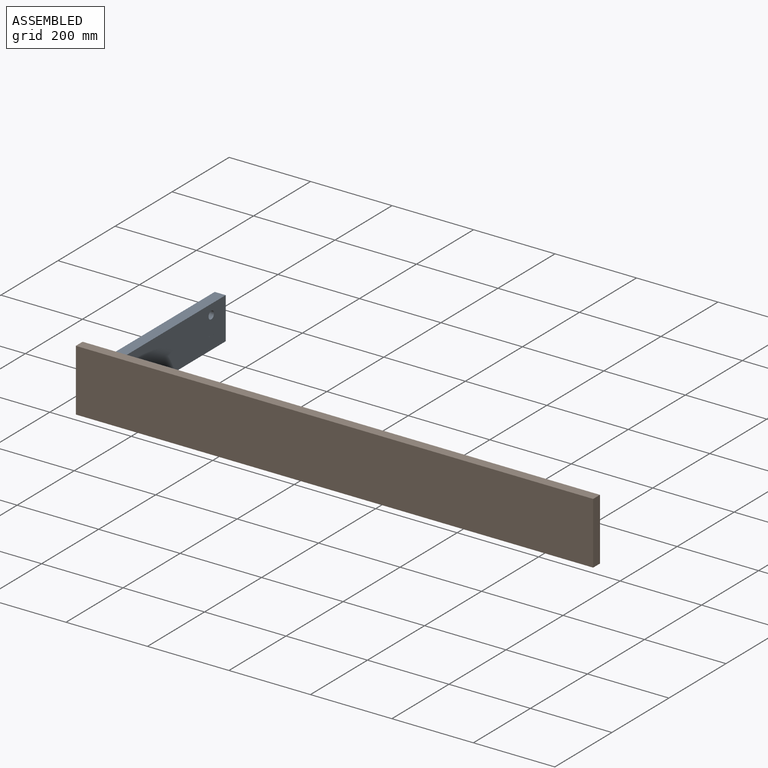
[diagram: assembled view]
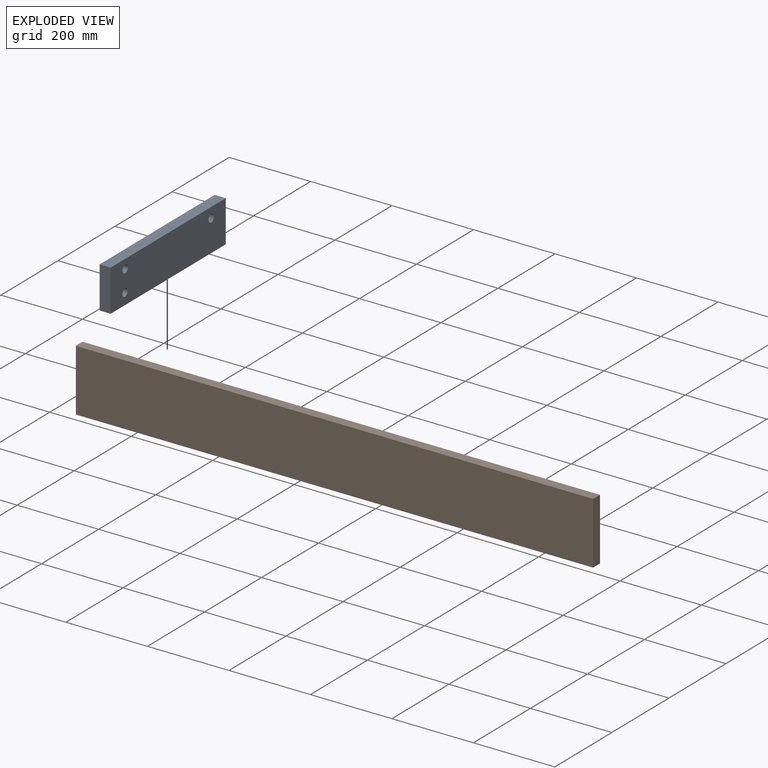
[diagram: exploded view]
GUIDED TOUR — MATED ASSEMBLY WITH SUBASSEMBLIES (Onshape document 4dad89749d95eceadba13d9a, AutoMate assembly 4dad89749d95eceadba13d9a_2f0892831f95bbd6a811efa2_f44882a6ea3945714f20935d_default)

This assembly has 4 component occurrences arranged in 2 top-level units: 1 individual components plus 1 subassembly (S0). The tour has two levels: first the top level, where each subassembly is treated as one rigid unit; then each subassembly is toured internally in its own section (nesting deeper than one subassembly level is flattened into its subassembly's section).

Components are labeled P0..P3 across the whole record; subassembly units are labeled S0..S0. A mate is a constraint between two units; its type names the relative motion it leaves free:
  CYLINDRICAL — leaves both rotation about and translation along the listed axis free,
  FASTENED — locks the two components together rigidly (no relative motion),
  PLANAR — leaves sliding in the plane through the listed point (normal = the listed direction) and rotation about that normal free.
Axis/direction vectors are unit vectors and 'through' points are millimeter coordinates, both in the assembly's world frame.

TOP-LEVEL MATES (between units; each subassembly's internal mates are listed in its own section)
  1. PLANAR "Planar 1": S0 <-> P2, direction (0.000, -1.000, 0.000) through (-868.23, -403.51, 72.04) mm
  2. PLANAR "Planar 2": S0 <-> P2, direction (-1.000, 0.000, 0.000) through (-874.97, -201.90, 72.00) mm

TOP-LEVEL ASSEMBLY ORDER
  1. P2 — the base component [order verified]
  2. S0 [order verified]
Order-tag legend:
  [order verified] — this step's position reverses a verified removal order: the component was checked to insert without passing through the ones already placed.

Of the 4 component occurrences, 3 carry the full construction recipe — the FeatureScript program that regenerates the part's solid from scratch; the rest are supplied as boundary geometry only. Each toured unit is shown spotlighted twice — assembled, then exploded with a leader line back to its socket (green = recipe-attached component, orange = geometry-only, blue = subassembly unit; the rest desaturated gray).
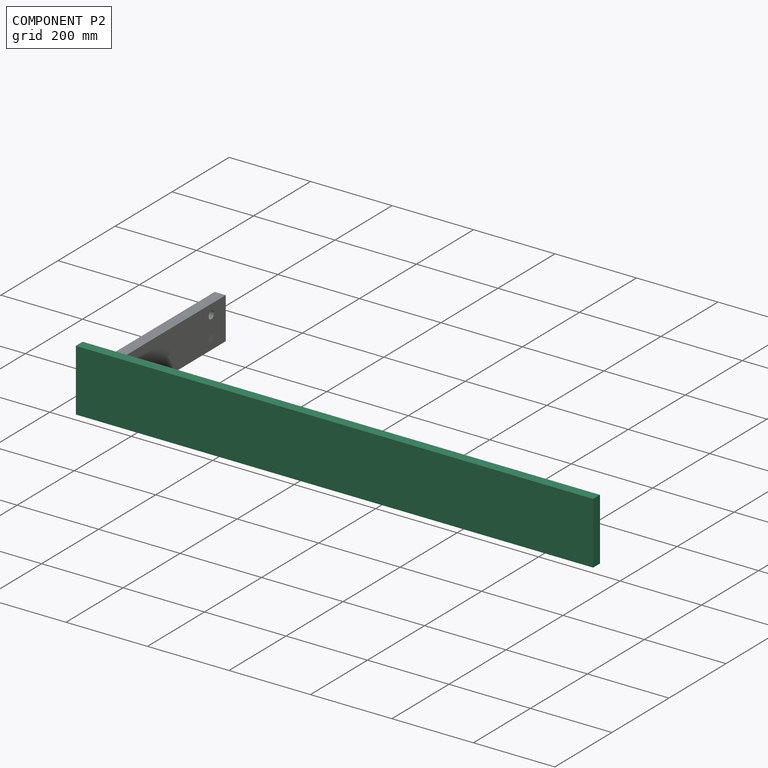
[diagram: component P2 — assembled]
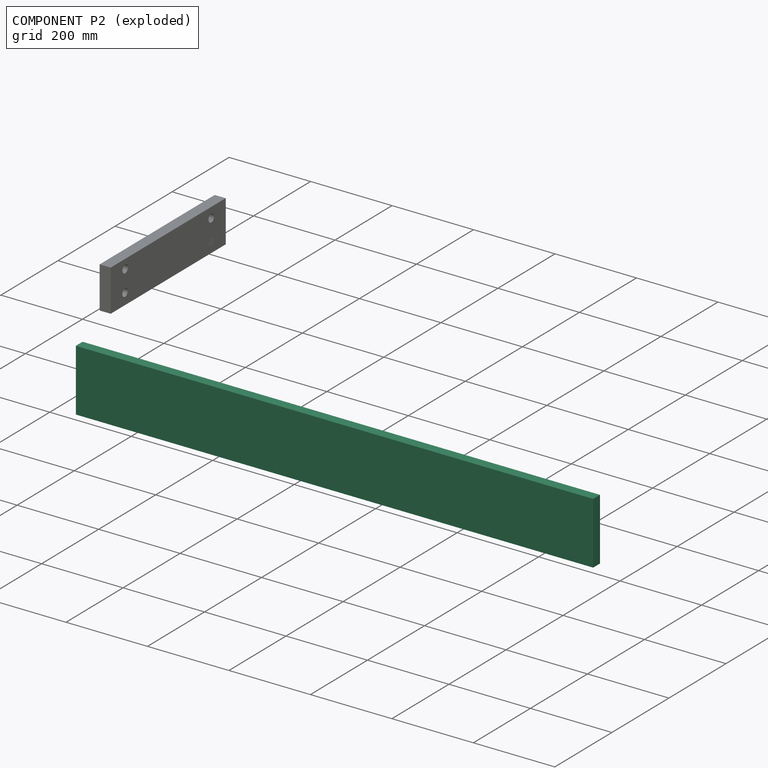
[diagram: component P2 — exploded]
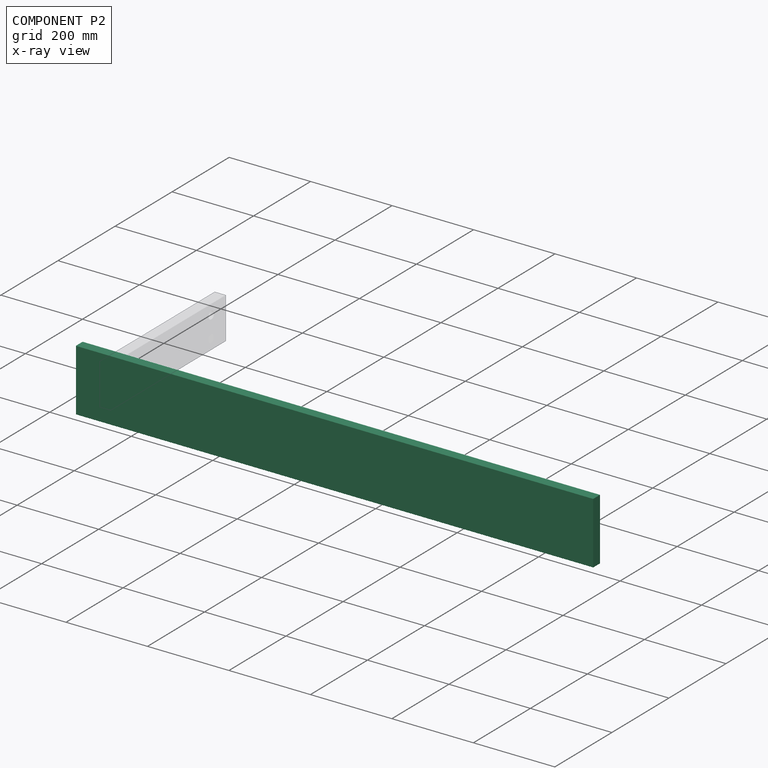
[diagram: component P2 — x-ray view]
COMPONENT P2 — recipe-attached (CADFS 00967313, mesh-verified: the recipe's output STEP matches this component's geometry to below the mesh-comparison resolution (tessellation chordal tolerance ~1.92 mm)).
Held by: PLANAR mate "Planar 1" to P0; PLANAR mate "Planar 2" to P0.
Construction recipe (FeatureScript — the CAD program that rebuilds this solid; sketch coordinates are in the units given by the * unit suffixes, e.g. mm):

FeatureScript 1511;
import(path : "onshape/std/geometry.fs", version : "1511.0");
import(path : "onshape/std/common.fs", version : "1511.0");
const mm = millimeter;
const VERTEX = EntityType.VERTEX;
const EDGE = EntityType.EDGE;
const FACE = EntityType.FACE;
const BODY = EntityType.BODY;
function v(x, y){return vector(x, y);}
function OD(order){return orderDisambiguation(order);}
function OSD(set){return originalSetDisambiguation(set);}
function TD(topology){return topologyDisambiguation(topology);}
function TDD(query){return trueDependencyDisambiguation(query);}
function sQuery(a, b, c) {return sketchEntityQuery(a, b, c);}

annotation { "Feature Type Name" : "Feature", "Feature Type Description" : "" }
export const myFeature = defineFeature(function(context is Context, id is Id, definition is map)
    precondition{}
    {
        {
            var Q0;
            Q0=qCreatedBy(makeId("Top.planeOp"),FACE);
            var sketch = newSketch(context, id + "F0", { "sketchPlane" : qUnion([Q0])});
            skLineSegment(sketch, "E0.bottom", {"start": v(-909.25, -64.28) * mm, "end": v(360.75, -64.28) * mm});
            skLineSegment(sketch, "E0.top", {"start": v(-909.25, -216.68) * mm, "end": v(360.75, -216.68) * mm});
            skLineSegment(sketch, "E0.left", {"start": v(-909.25, -64.28) * mm, "end": v(-909.25, -216.68) * mm});
            skLineSegment(sketch, "E0.right", {"start": v(360.75, -64.28) * mm, "end": v(360.75, -216.68) * mm});
            skSolve(sketch);
        }
        {
            var Q0;
            Q0=makeQuery(id+"F0.imprint","IMPRINT",FACE,{"disambiguationData":[TD([[makeQuery(id+"F0.imprint","IMPRINT",EDGE,{"derivedFrom":sQuery(id+"F0.wireOp",EDGE,"E0.bottom")}),-1.0]])]});
            extrude(context, id + "F1", {"entities" : qUnion([Q0]), "depth" : 23.8 * mm, "offsetDistance" : 25.4 * mm});
        }
        {
            var Q0;
            Q0=makeQuery(id+"F1.opExtrude","CAP_FACE",FACE,{"disambiguationData":[OSD([sQuery(id+"F0.wireOp",EDGE,"E0.bottom"),sQuery(id+"F0.wireOp",EDGE,"E0.top"),sQuery(id+"F0.wireOp",EDGE,"E0.left"),sQuery(id+"F0.wireOp",EDGE,"E0.right")])],"isStart":true});
            var sketch = newSketch(context, id + "F2", { "sketchPlane" : qUnion([Q0])});
            skLineSegment(sketch, "E1.bottom", {"start": v(-858.45, 191.68) * mm, "end": v(-831.46, 191.68) * mm});
            skLineSegment(sketch, "E1.top", {"start": v(-858.45, 89.28) * mm, "end": v(-831.46, 89.28) * mm});
            skLineSegment(sketch, "E1.left", {"start": v(-858.45, 191.68) * mm, "end": v(-858.45, 89.28) * mm});
            skLineSegment(sketch, "E1.right", {"start": v(-831.46, 191.68) * mm, "end": v(-831.46, 89.28) * mm});
            skPoint(sketch, "E2", {"position": v(-909.25, 140.48) * mm});
            skPoint(sketch, "E3", {"position": v(-858.45, 140.48) * mm});
            skLineSegment(sketch, "E4", {"start": v(-274.25, 64.28) * mm, "end": v(-274.25, 216.68) * mm, "construction": true});
            skLineSegment(sketch, "E5.MirrorCS", {"start": v(282.97, 191.68) * mm, "end": v(282.97, 89.28) * mm});
            skLineSegment(sketch, "E6.MirrorCS", {"start": v(309.95, 89.28) * mm, "end": v(282.97, 89.28) * mm});
            skLineSegment(sketch, "E7.MirrorCS", {"start": v(309.95, 191.68) * mm, "end": v(309.95, 89.28) * mm});
            skLineSegment(sketch, "E8.MirrorCS", {"start": v(309.95, 191.68) * mm, "end": v(282.97, 191.68) * mm});
            skSolve(sketch);
        }
        {
            var Q0;
            Q0 = qSketchRegion(id + "F2", true);
            extrude(context, id + "F3", {"entities" : qUnion([Q0]), "operationType" : NewBodyOperationType.REMOVE, "oppositeDirection" : true, "depth" : 12.7 * mm, "offsetDistance" : 25.4 * mm});
        }
    });
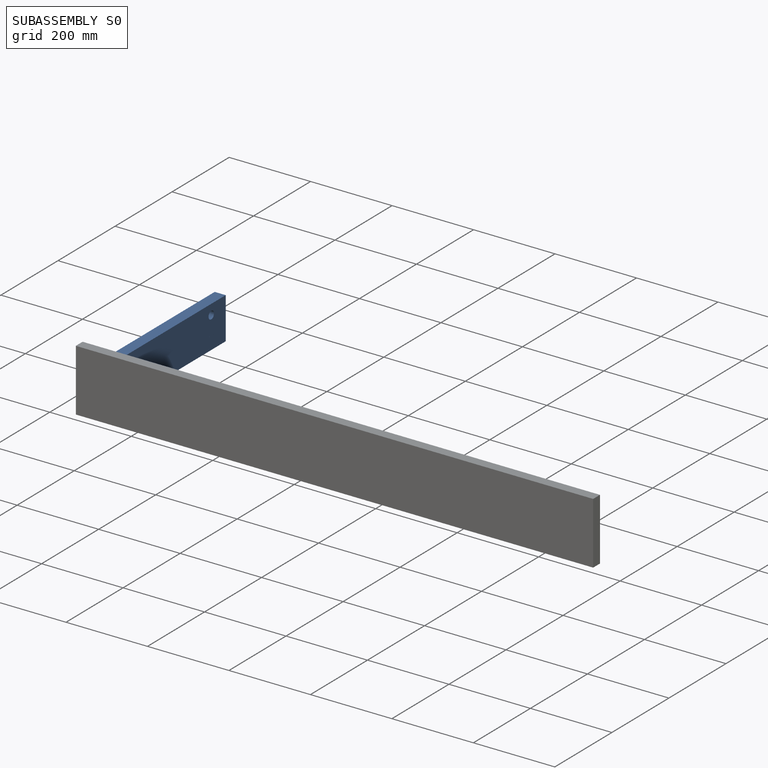
[diagram: subassembly S0 — assembled]
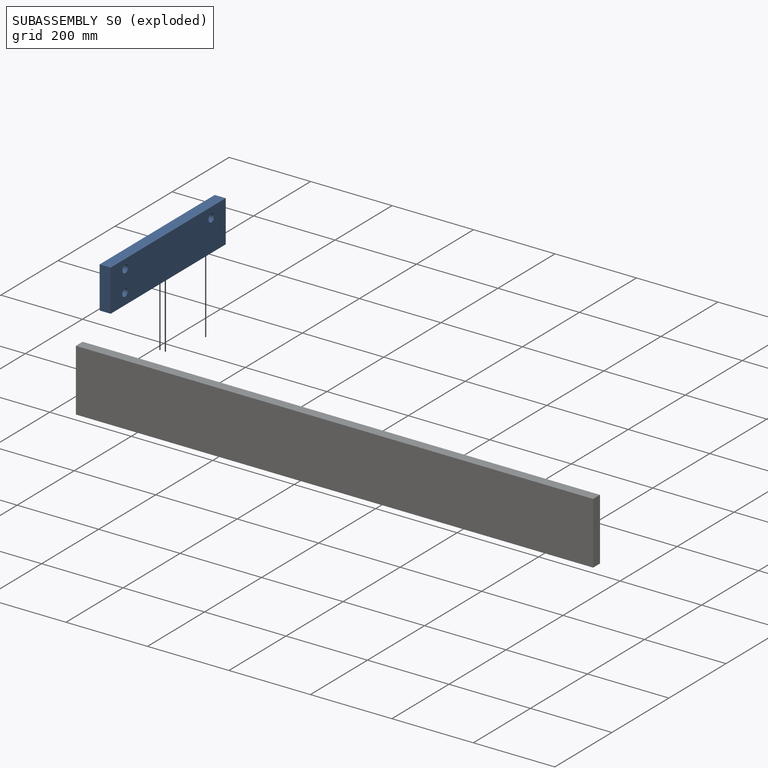
[diagram: subassembly S0 — exploded]
SUBASSEMBLY S0 — 3 components (P0, P1, P3), of which 2 recipe-attached; toured below.
Held by: PLANAR mate "Planar 1" to P2; PLANAR mate "Planar 2" to P2.
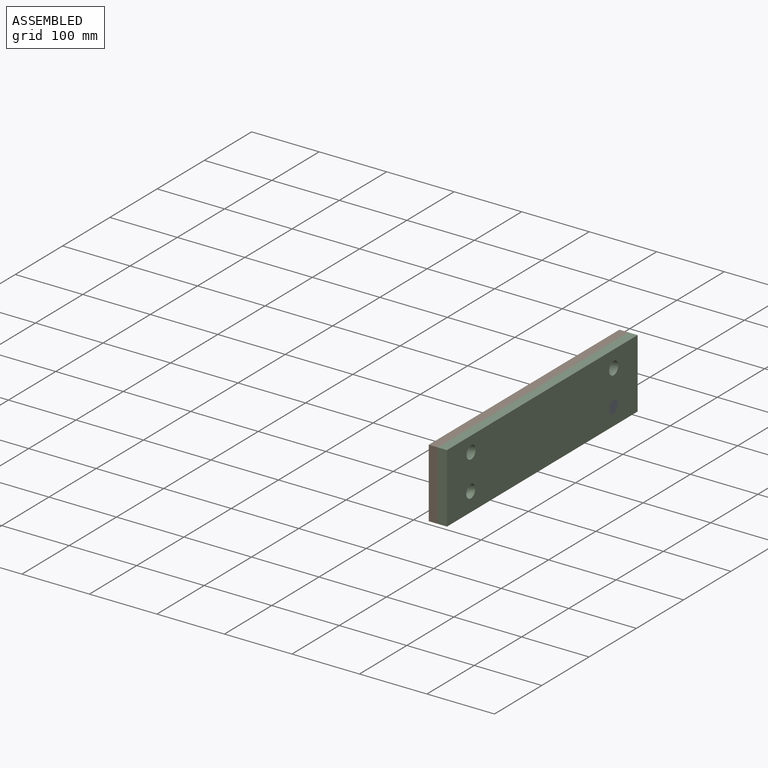
[diagram: subassembly S0 — assembled view]
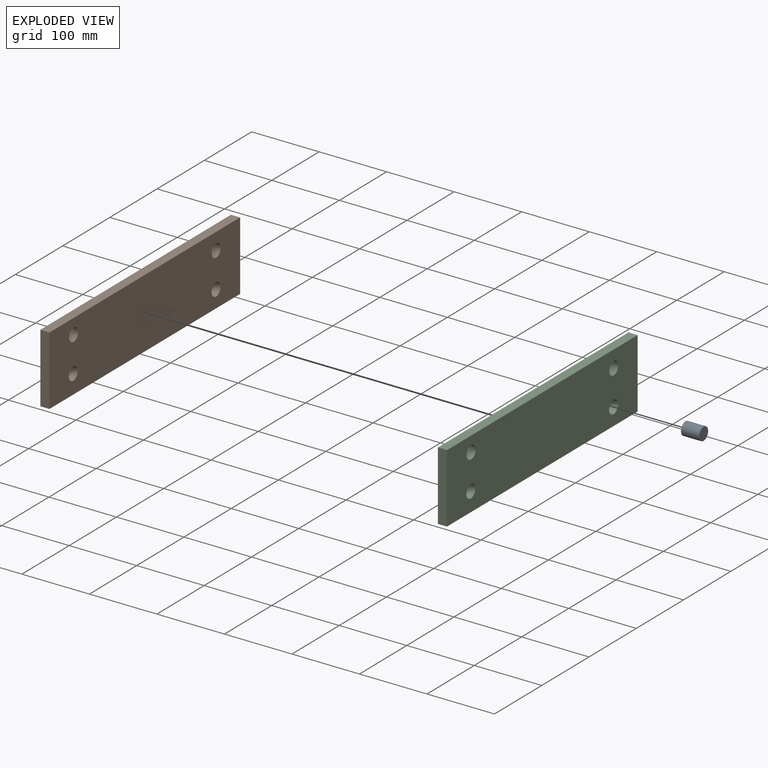
[diagram: subassembly S0 — exploded view]
SUBASSEMBLY S0 TOUR — 3 components, shown here in isolation at its own camera.

INTERNAL MATES
  1. CYLINDRICAL "Cylindrical 2": P0 <-> P1, axis (-1.000, 0.000, 0.000) through (-861.48, -51.08, 46.24) mm
  2. PLANAR "Planar 1": P0 <-> P1, direction (-1.000, 0.000, 0.000) through (-874.97, -51.08, 46.24) mm
  3. FASTENED "Fastened 1": P3 <-> P1, direction (-1.000, 0.000, 0.000) through (-861.48, -201.90, 72.00) mm
  4. FASTENED "Fastened 1": P3 <-> P1, direction (-1.000, 0.000, 0.000) through (-861.48, -201.90, 72.00) mm
  5. PLANAR "Planar 1": P0 <-> P1, direction (-1.000, 0.000, 0.000) through (-874.97, -51.08, 46.24) mm
  6. CYLINDRICAL "Cylindrical 2": P0 <-> P1, axis (-1.000, 0.000, 0.000) through (-861.48, -51.08, 46.24) mm

ASSEMBLY ORDER (within the subassembly)
  1. P3 — the base component [order verified]
  2. P1 [order verified]
  3. P0 [order verified]
Order-tag legend:
  [order verified] — this step's position reverses a verified removal order: the component was checked to insert without passing through the ones already placed.
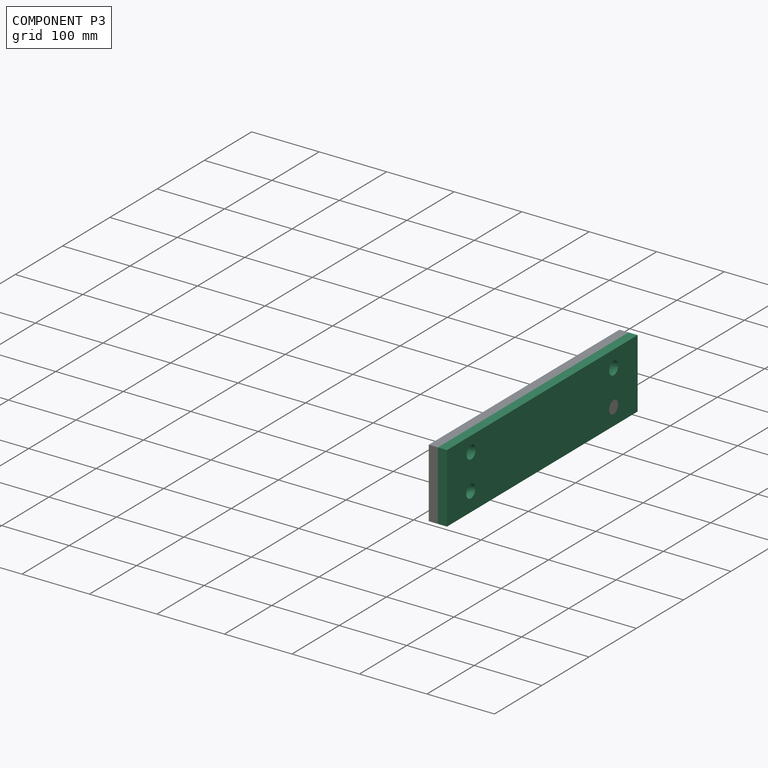
[diagram: component P3 — assembled]
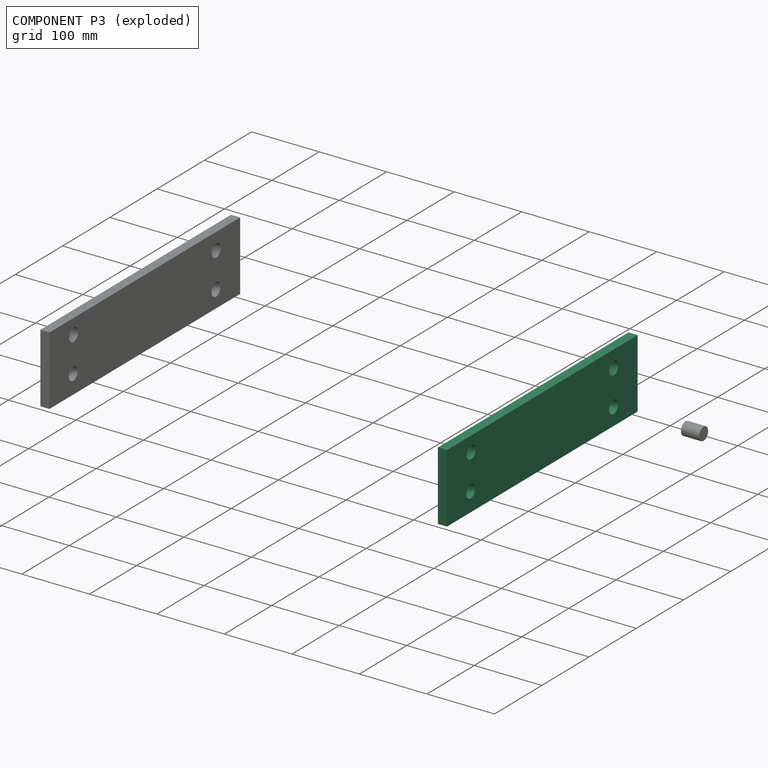
[diagram: component P3 — exploded]
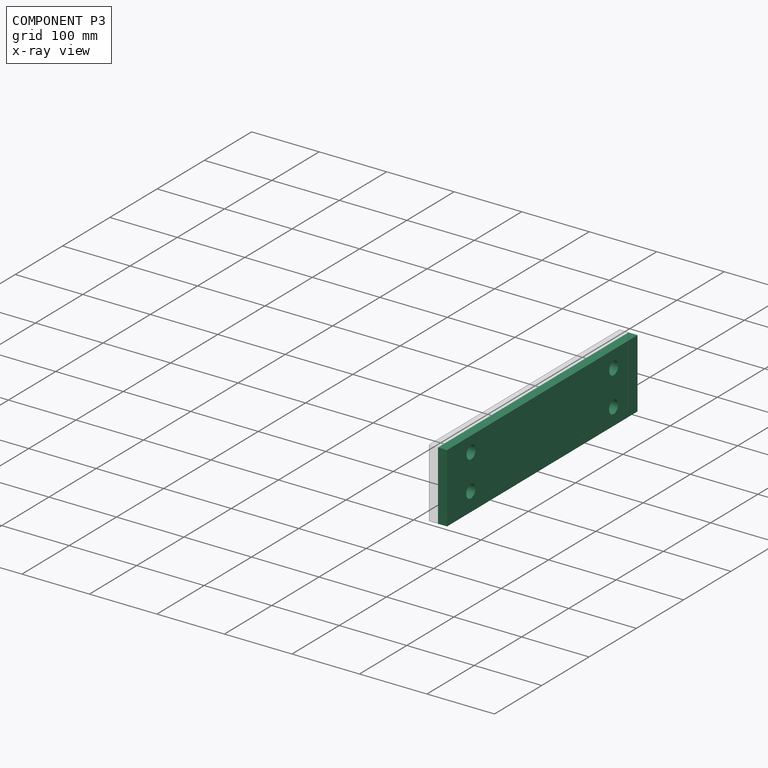
[diagram: component P3 — x-ray view]
COMPONENT P3 — same part as P1 (CADFS 00967314); its construction recipe is shown at P1.
Held by: FASTENED mate "Fastened 1" to P1; FASTENED mate "Fastened 1" to P1.
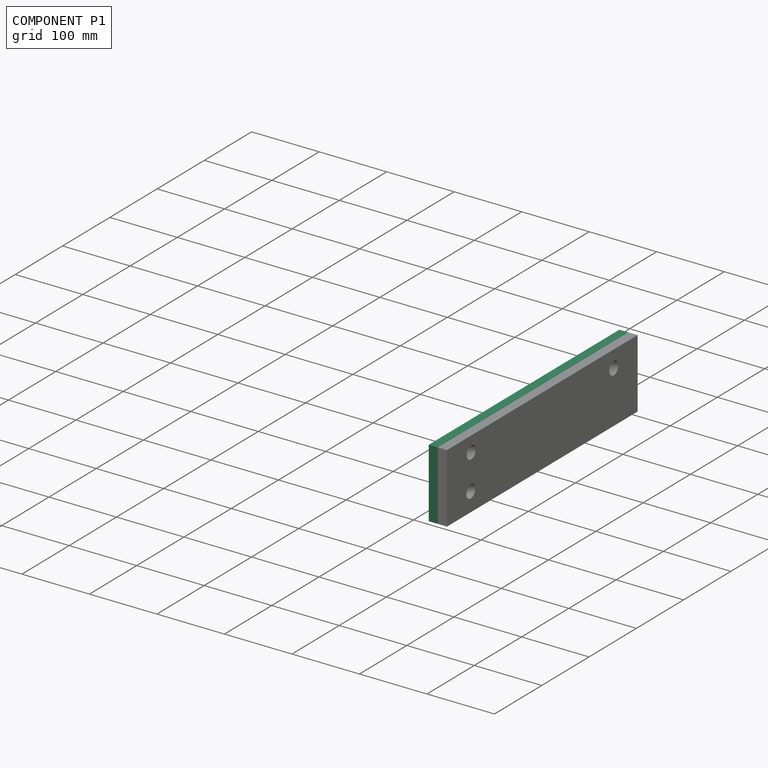
[diagram: component P1 — assembled]
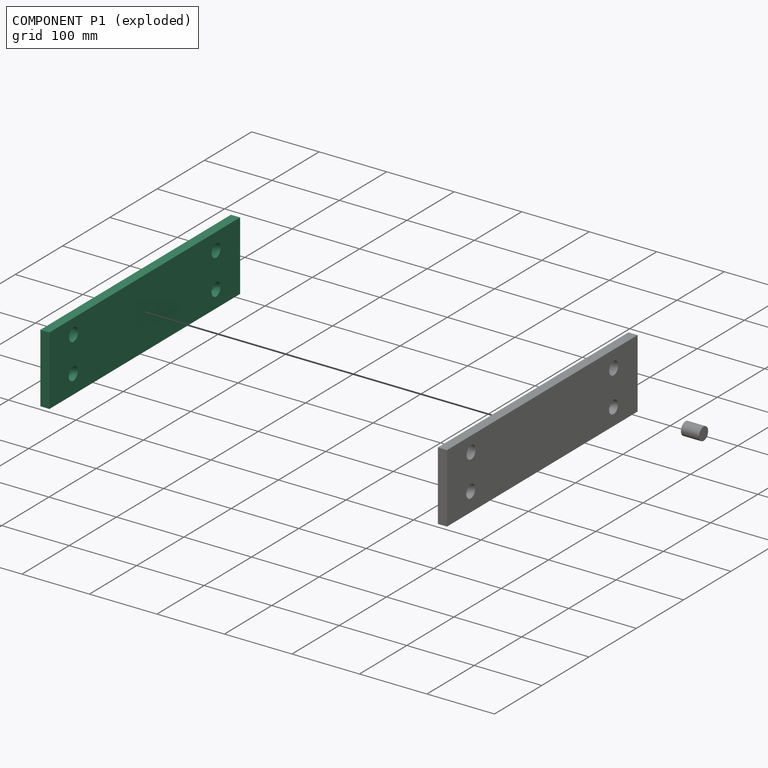
[diagram: component P1 — exploded]
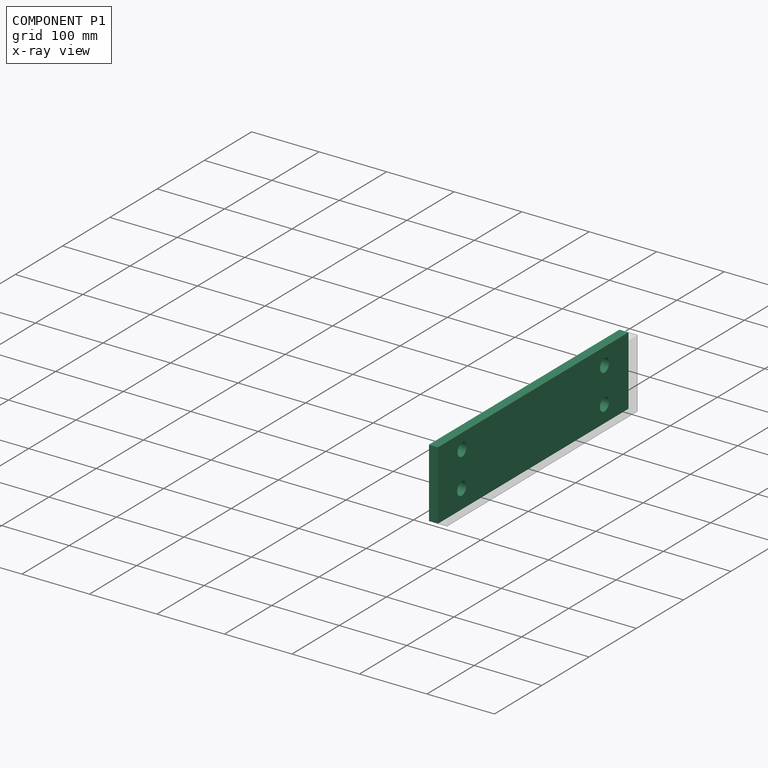
[diagram: component P1 — x-ray view]
COMPONENT P1 — recipe-attached (CADFS 00967314, mesh-verified: the recipe's output STEP matches this component's geometry to below the mesh-comparison resolution (tessellation chordal tolerance ~0.624 mm)).
Held by: CYLINDRICAL mate "Cylindrical 2" to P0; PLANAR mate "Planar 1" to P0; FASTENED mate "Fastened 1" to P3; FASTENED mate "Fastened 1" to P3; PLANAR mate "Planar 1" to P0; CYLINDRICAL mate "Cylindrical 2" to P0.
Construction recipe (FeatureScript — the CAD program that rebuilds this solid; sketch coordinates are in the units given by the * unit suffixes, e.g. mm):

FeatureScript 1511;
import(path : "onshape/std/geometry.fs", version : "1511.0");
import(path : "onshape/std/common.fs", version : "1511.0");
const mm = millimeter;
const VERTEX = EntityType.VERTEX;
const EDGE = EntityType.EDGE;
const FACE = EntityType.FACE;
const BODY = EntityType.BODY;
function v(x, y){return vector(x, y);}
function OD(order){return orderDisambiguation(order);}
function OSD(set){return originalSetDisambiguation(set);}
function TD(topology){return topologyDisambiguation(topology);}
function TDD(query){return trueDependencyDisambiguation(query);}
function sQuery(a, b, c) {return sketchEntityQuery(a, b, c);}

annotation { "Feature Type Name" : "Feature", "Feature Type Description" : "" }
export const myFeature = defineFeature(function(context is Context, id is Id, definition is map)
    precondition{}
    {
        {
            var Q0;
            Q0=qCreatedBy(makeId("Front.planeOp"),FACE);
            var sketch = newSketch(context, id + "F0", { "sketchPlane" : qUnion([Q0])});
            skLineSegment(sketch, "E0.bottom", {"start": v(-52.91, 320.28) * mm, "end": v(49.48, 320.28) * mm});
            skLineSegment(sketch, "E0.top", {"start": v(-52.91, -82.95) * mm, "end": v(49.48, -82.95) * mm});
            skLineSegment(sketch, "E0.left", {"start": v(-52.91, 320.28) * mm, "end": v(-52.91, -82.95) * mm});
            skLineSegment(sketch, "E0.right", {"start": v(49.48, 320.28) * mm, "end": v(49.48, -82.95) * mm});
            skSolve(sketch);
        }
        {
            var Q0;
            Q0 = qSketchRegion(id + "F0", true);
            extrude(context, id + "F1", {"entities" : qUnion([Q0]), "depth" : 13.5 * mm, "offsetDistance" : 25.4 * mm});
        }
        {
            var Q0;
            Q0=makeQuery(id+"F1.opExtrude","CAP_FACE",FACE,{"disambiguationData":[OSD([sQuery(id+"F0.wireOp",EDGE,"E0.bottom"),sQuery(id+"F0.wireOp",EDGE,"E0.top"),sQuery(id+"F0.wireOp",EDGE,"E0.left"),sQuery(id+"F0.wireOp",EDGE,"E0.right")])],"isStart":false});
            var sketch = newSketch(context, id + "F2", { "sketchPlane" : qUnion([Q0])});
            skCircle(sketch, "E1", {"center": v(-27.51, 269.48) * mm, "radius": 9.53 * mm});
            skLineSegment(sketch, "E2", {"start": v(-52.91, 118.67) * mm, "end": v(49.48, 118.67) * mm, "construction": true});
            skLineSegment(sketch, "E3", {"start": v(-1.72, 320.28) * mm, "end": v(0, -82.95) * mm, "construction": true});
            skCircle(sketch, "E4.MirrorC", {"center": v(24.51, 269.7) * mm, "radius": 9.53 * mm});
            skLineSegment(sketch, "E5.MirrorCS", {"start": v(51.2, 119.11) * mm, "end": v(-51.2, 118.24) * mm, "construction": true});
            skCircle(sketch, "E6.MirrorC", {"center": v(-24.94, -32.58) * mm, "radius": 9.53 * mm});
            skCircle(sketch, "E7.MirrorC", {"center": v(27.08, -31.91) * mm, "radius": 9.53 * mm});
            skSolve(sketch);
        }
        {
            var Q0;
            Q0 = qSketchRegion(id + "F2", true);
            extrude(context, id + "F3", {"entities" : qUnion([Q0]), "operationType" : NewBodyOperationType.REMOVE, "endBound" : BoundingType.THROUGH_ALL, "oppositeDirection" : true, "depth" : 25.4 * mm, "offsetDistance" : 25.4 * mm});
        }
    });
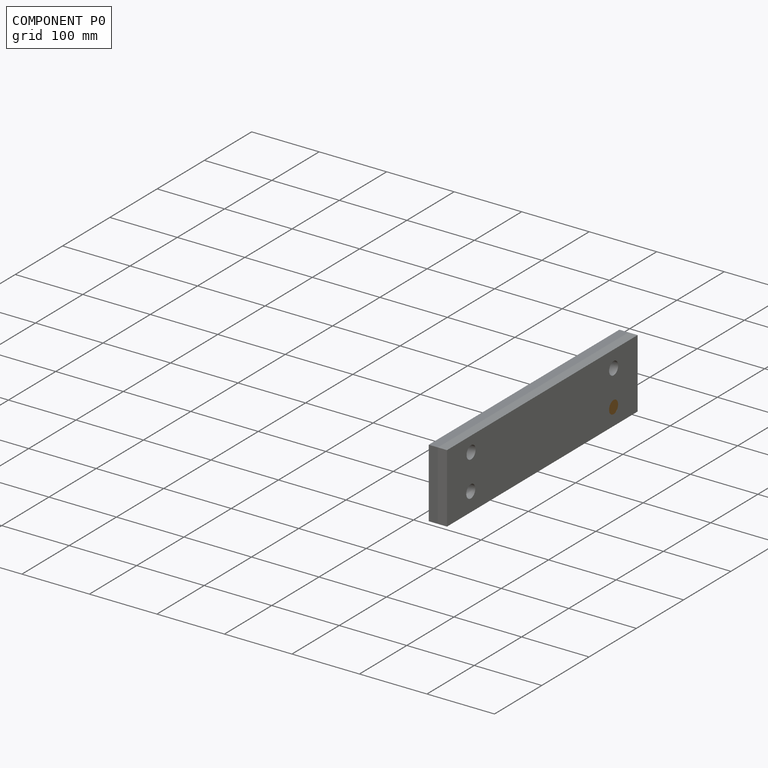
[diagram: component P0 — assembled]
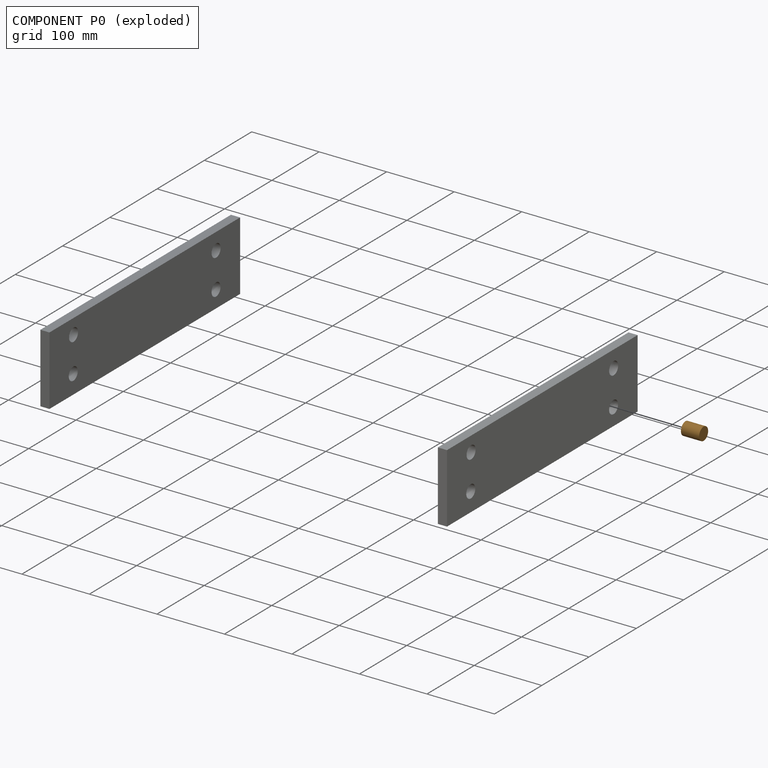
[diagram: component P0 — exploded]
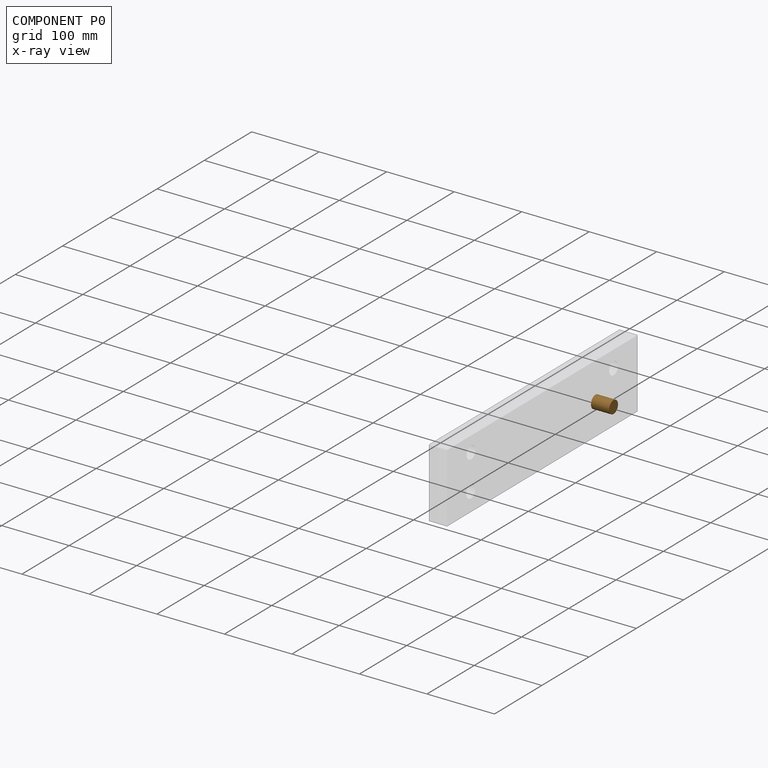
[diagram: component P0 — x-ray view]
COMPONENT P0 — geometry summary (no construction recipe available for this part):
  bounding box: 27.0 x 19.1 x 19.1 mm
  B-rep topology: 1 solid, 3 faces, 6 edges
  volume: 7692 mm^3 (79% of its bounding box)
  symmetry: 2-fold rotationally symmetric about the x axis; 2-fold rotationally symmetric about the y axis; revolution-symmetric about the z axis through its bounding-box center; mirror-symmetric across its x mid-plane, y mid-plane, z mid-plane
Held by: CYLINDRICAL mate "Cylindrical 2" to P1; PLANAR mate "Planar 1" to P1; PLANAR mate "Planar 1" to P1; CYLINDRICAL mate "Cylindrical 2" to P1.
PROVENANCE & LICENSES
Assembly (occurrences, transforms, mates, per-part STEP geometry): AutoMate dataset, Zenodo record 7776208, CC0.
Construction recipes: CADFS (HuggingFace VladPyatov/CADFS, CC-BY-4.0, layered over the ABC dataset), FeatureScript reconstruction programs keyed by ABC model id.
Join: ABC meta listings map ABC model id -> Onshape documentId; within a shared document, parts are matched by geometric signature (bounding-box dims + volume at 0.1% relative tolerance, exact B-rep face/solid counts).
Verification: 3 of this assembly's 4 components carry a recipe attachment, and every attachment is mesh-verified: the CADFS STEP and the AutoMate member STEP were compared as meshes in their shared local frame (symmetric sampled-point-to-mesh distance); worst across the 3 attachments: below the mesh-comparison resolution (tessellation chordal tolerance ~1.92 mm) on a 1279 mm part.
Renders: orthographic iso camera (az 35 / el 25); the floor grid conveys scale (grid pitch printed in each image; no ruler). In the exploded view each component is displaced by its stored offset vector: the offsets alone carry the explosion direction (mate normal/axis signs are not orientation cues and do not encode it), and separation distances are assigned per mate-chain, not proportionally to assembly-order depth.
